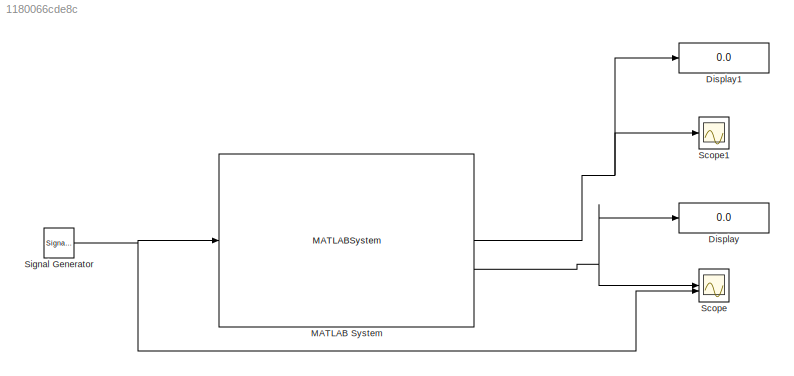
MODEL slx_1180066cde8c
KIND model
CONFIG AbsTol = auto
CONFIG EnableMultiTasking = off
CONFIG FixedStep = .02
CONFIG MaxStep = auto
CONFIG MinStep = auto
CONFIG RelTol = 1e-3
CONFIG SampleTimeConstraint = Unconstrained
CONFIG SolverName = FixedStepAuto
CONFIG StartTime = 0.0
CONFIG StopTime = inf
BLOCK [Display] Display
  Decimation = 1
BLOCK [Display] Display1
  Decimation = 1
BLOCK [MATLABSystem] MATLAB System
  BaudRate = 115200
  COMPort = /dev/ttyACM0
  MaskType = ArduinoSerial
  SimulateUsing = Interpreted execution
  System = ArduinoSerial
BLOCK [Scope] Scope
  ActiveDisplayYMaximum = 9.5729966998517924
  ActiveDisplayYMinimum = -16.539657345156396
  Floating = off
  GraphicalSettings = {"Style":{"BackgroundColor":[0.12941176470588237,0.12941176470588237,0.12941176470588237],"AxesColor":[0.07058823529411765,0.07058823529411765,0.07058823529411765],"LabelsColor":[0.8509803921568627,0.8509803921568627,0.8509803921568627],"PreserveColors":false,"Visible":[true,true],"LineStyle":["-","-"],"LineWidth":[1.5,1.5],"BarWidth":[0.9,0.9],"LineColor":["auto","auto"],"LineFaceAlpha":[1,1],"Li...<+2118ch>
  MultipleDisplayCache = [{"MaxYLimMag":3.75,"MaxYLimReal":9.5729966998517924,"MinYLimMag":0,"MinYLimReal":-16.539657345156396,"PlotAsMagnitudePhase":false,"ShowGrid":true,"ShowLegend":false,"Title":"%<SignalLabel>","YLabel":""}]
  NumInputPorts = 2
  ScopeFrameLocation = window
  Visible = on
  WasSavedAsWebScope = on
  WindowPosition = [961.000000,1.000000,960.000000,547.000000,]
BLOCK [Scope] Scope1
  ActiveDisplayYMaximum = -32196.75
  ActiveDisplayYMinimum = -33099.25
  DataLoggingVariableName = ScopeData1
  Floating = off
  GraphicalSettings = {"AxesScalingProperties":{"AlignXAxis":"Center","AlignYAxis":"Center","AutoScaleXAxisLimits":false,"AxesScaling":"Auto","AxesScalingNumUpdates":10,"ExpandOnly":true,"ScaleAxesLimitsAtStop":false,"XAxisDataRange":100,"YAxisDataRange":80},"DisplayProperties":{"ColorOrder":["auto","auto","auto","auto","auto","auto","auto","auto","auto","auto","auto","auto","auto","auto","auto","auto","auto","auto","a...<+1970ch>
  MultipleDisplayCache = [{"MaxYLimMag":33099.25,"MaxYLimReal":-32196.75,"MinYLimMag":0,"MinYLimReal":-33099.25,"PlotAsMagnitudePhase":false,"ShowGrid":true,"ShowLegend":false,"Title":"%<SignalLabel>","YLabel":""}]
  NumInputPorts = 1
  ScopeFrameLocation = window
  Visible = on
  WasSavedAsWebScope = on
  WindowPosition = [961.000000,585.000000,960.000000,547.000000,]
BLOCK [SignalGenerator] Signal Generator
  Frequency = .5
  WaveForm = square
NET MATLAB System:1 -> Display1:1, Scope1:1
NET MATLAB System:2 -> Display:1, Scope:1
NET Signal Generator:1 -> MATLAB System:1, Scope:2
note: NET lines group one-source signal fan-out (src -> all destinations, sorted); 1:1 wires keep LINE
